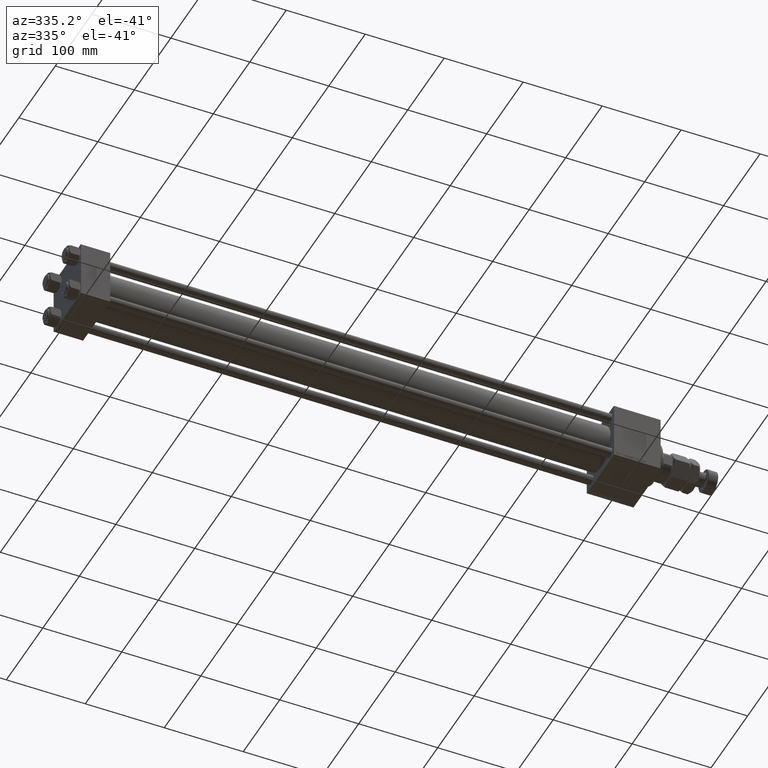
[diagram: clean part render]
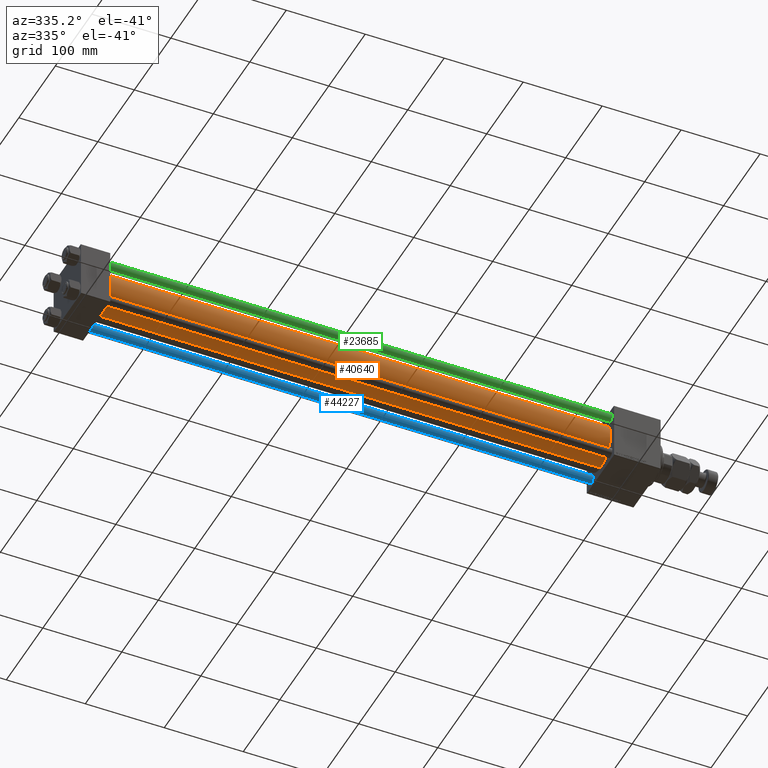
[diagram: same view with three faces highlighted in distinct colors, each labeled with its STEP entity id]
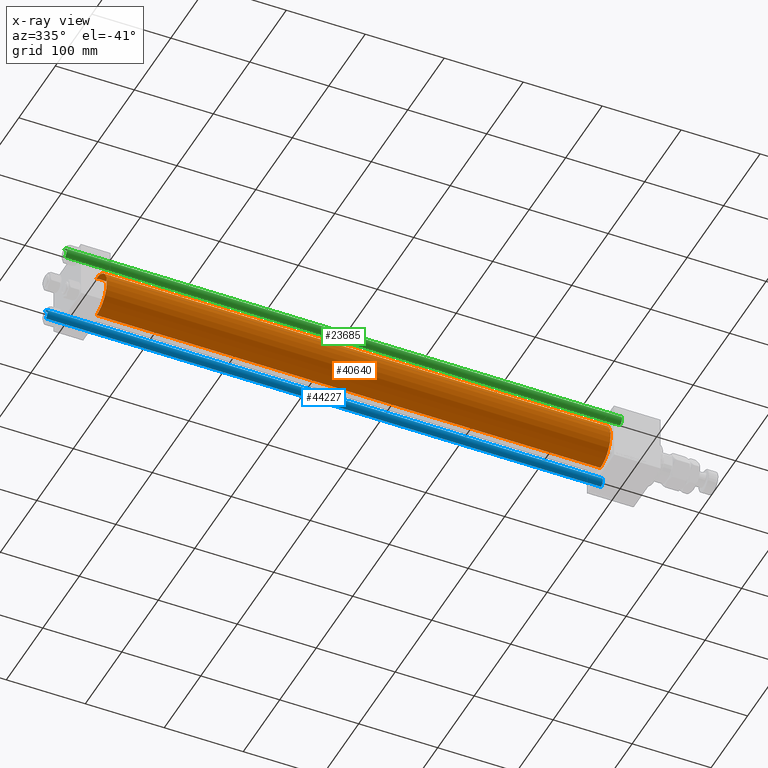
[diagram: x-ray of the same camera — body ghosted, the three highlighted faces saturated]
A machine part, auxiliary view with three faces highlighted in distinct colors.
The next image is the same camera in x-ray (body ghosted, the three faces saturated) — at least one of them is partly hidden behind the body in this view.
Their STEP definitions:

[orange] entity #40640 — the highlighted cylindrical surface (edge-blend (fillet) strip) has radius 28 mm, axis along (-1, -0, -0).
#881 = EDGE_CURVE ( 'NONE', #2930, #25992, #46389, .T. ) ;
#2930 = VERTEX_POINT ( 'NONE', #40798 ) ;
#4087 = CARTESIAN_POINT ( 'NONE',  ( 675.0000000000000000, -2.602085213965210642E-15, 0.000000000000000000 ) ) ;
#4605 = DIRECTION ( 'NONE',  ( 0.000000000000000000, 0.000000000000000000, -1.000000000000000000 ) ) ;
#11795 = AXIS2_PLACEMENT_3D ( 'NONE', #34148, #38110, #42054 ) ;
#12792 = CARTESIAN_POINT ( 'NONE',  ( 675.0000000000000000, 8.269258236473784371E-16, -28.00000000000000000 ) ) ;
#14673 = FACE_OUTER_BOUND ( 'NONE', #31154, .T. ) ;
#14922 = CARTESIAN_POINT ( 'NONE',  ( 675.0000000000000000, -2.602085213965210642E-15, 0.000000000000000000 ) ) ;
#15103 = VECTOR ( 'NONE', #17630, 1000.000000000000000 ) ;
#15224 = CARTESIAN_POINT ( 'NONE',  ( 675.0000000000000000, 8.269258236473784371E-16, -28.00000000000000000 ) ) ;
#16255 = EDGE_CURVE ( 'NONE', #24198, #17507, #20449, .T. ) ;
#16880 = CIRCLE ( 'NONE', #11795, 28.00000000000000000 ) ;
#17507 = VERTEX_POINT ( 'NONE', #19424 ) ;
#17630 = DIRECTION ( 'NONE',  ( -1.000000000000000000, -0.000000000000000000, -0.000000000000000000 ) ) ;
#18221 = ORIENTED_EDGE ( 'NONE', *, *, #881, .T. ) ;
#19424 = CARTESIAN_POINT ( 'NONE',  ( 37.00000000000003553, 8.269258236473784371E-16, -28.00000000000000000 ) ) ;
#20332 = CARTESIAN_POINT ( 'NONE',  ( 37.00000000000003553, -2.602085213965210642E-15, 28.00000000000000000 ) ) ;
#20449 = LINE ( 'NONE', #15224, #35118 ) ;
#21574 = CARTESIAN_POINT ( 'NONE',  ( 675.0000000000000000, -2.602085213965210642E-15, 28.00000000000000000 ) ) ;
#21923 = CIRCLE ( 'NONE', #26144, 28.00000000000000000 ) ;
#24029 = EDGE_CURVE ( 'NONE', #2930, #24198, #21923, .T. ) ;
#24198 = VERTEX_POINT ( 'NONE', #12792 ) ;
#24918 = EDGE_CURVE ( 'NONE', #25992, #17507, #16880, .T. ) ;
#25992 = VERTEX_POINT ( 'NONE', #20332 ) ;
#26144 = AXIS2_PLACEMENT_3D ( 'NONE', #4087, #36276, #4605 ) ;
#27042 = DIRECTION ( 'NONE',  ( 0.000000000000000000, 0.000000000000000000, 1.000000000000000000 ) ) ;
#27332 = ORIENTED_EDGE ( 'NONE', *, *, #24029, .F. ) ;
#31001 = DIRECTION ( 'NONE',  ( -1.000000000000000000, -0.000000000000000000, -0.000000000000000000 ) ) ;
#31154 = EDGE_LOOP ( 'NONE', ( #37407, #27332, #18221, #36185 ) ) ;
#34148 = CARTESIAN_POINT ( 'NONE',  ( 37.00000000000003553, -2.602085213965210642E-15, 0.000000000000000000 ) ) ;
#34961 = CYLINDRICAL_SURFACE ( 'NONE', #46816, 28.00000000000000000 ) ;
#35118 = VECTOR ( 'NONE', #47400, 1000.000000000000000 ) ;
#36185 = ORIENTED_EDGE ( 'NONE', *, *, #24918, .T. ) ;
#36276 = DIRECTION ( 'NONE',  ( 1.000000000000000000, 0.000000000000000000, 0.000000000000000000 ) ) ;
#37407 = ORIENTED_EDGE ( 'NONE', *, *, #16255, .F. ) ;
#38110 = DIRECTION ( 'NONE',  ( 1.000000000000000000, -0.000000000000000000, 0.000000000000000000 ) ) ;
#40640 = ADVANCED_FACE ( 'NONE', ( #14673 ), #34961, .T. ) ;
#40798 = CARTESIAN_POINT ( 'NONE',  ( 675.0000000000000000, -2.602085213965210642E-15, 28.00000000000000000 ) ) ;
#42054 = DIRECTION ( 'NONE',  ( 0.000000000000000000, 0.000000000000000000, 1.000000000000000000 ) ) ;
#46389 = LINE ( 'NONE', #21574, #15103 ) ;
#46816 = AXIS2_PLACEMENT_3D ( 'NONE', #14922, #31001, #27042 ) ;
#47400 = DIRECTION ( 'NONE',  ( -1.000000000000000000, -0.000000000000000000, -0.000000000000000000 ) ) ;

[blue] entity #44227 — the highlighted cylindrical surface (edge-blend (fillet) strip) has radius 6 mm, axis along (1, -0, 0).
#5690 = VERTEX_POINT ( 'NONE', #16688 ) ;
#6968 = DIRECTION ( 'NONE',  ( -0.000000000000000000, -0.000000000000000000, 1.000000000000000000 ) ) ;
#9003 = VECTOR ( 'NONE', #17805, 1000.000000000000000 ) ;
#10936 = LINE ( 'NONE', #43119, #9003 ) ;
#12044 = CARTESIAN_POINT ( 'NONE',  ( -6.000000000000000888, 0.000000000000000000, 703.5000000000000000 ) ) ;
#13727 = AXIS2_PLACEMENT_3D ( 'NONE', #46554, #6968, #18586 ) ;
#14998 = ORIENTED_EDGE ( 'NONE', *, *, #23281, .T. ) ;
#16497 = EDGE_CURVE ( 'NONE', #5690, #40656, #10936, .T. ) ;
#16556 = AXIS2_PLACEMENT_3D ( 'NONE', #38262, #46169, #17414 ) ;
#16688 = CARTESIAN_POINT ( 'NONE',  ( 6.000000000000000888, 7.347880794884120722E-16, 703.5000000000000000 ) ) ;
#17414 = DIRECTION ( 'NONE',  ( -1.000000000000000000, 0.000000000000000000, 0.000000000000000000 ) ) ;
#17805 = DIRECTION ( 'NONE',  ( -0.000000000000000000, -0.000000000000000000, -1.000000000000000000 ) ) ;
#17848 = LINE ( 'NONE', #45808, #42950 ) ;
#18586 = DIRECTION ( 'NONE',  ( 1.000000000000000000, 0.000000000000000000, 0.000000000000000000 ) ) ;
#20439 = CIRCLE ( 'NONE', #13727, 6.000000000000000888 ) ;
#21903 = EDGE_CURVE ( 'NONE', #5690, #40392, #51286, .T. ) ;
#23281 = EDGE_CURVE ( 'NONE', #40392, #34506, #17848, .T. ) ;
#24361 = CARTESIAN_POINT ( 'NONE',  ( 6.000000000000000888, 7.347880794884120722E-16, 0.4999999999998339106 ) ) ;
#27919 = EDGE_LOOP ( 'NONE', ( #45171, #47991, #14998, #51648 ) ) ;
#30259 = AXIS2_PLACEMENT_3D ( 'NONE', #50659, #38797, #30365 ) ;
#30365 = DIRECTION ( 'NONE',  ( 1.000000000000000000, 0.000000000000000000, 0.000000000000000000 ) ) ;
#33935 = DIRECTION ( 'NONE',  ( -0.000000000000000000, -0.000000000000000000, -1.000000000000000000 ) ) ;
#34501 = EDGE_CURVE ( 'NONE', #34506, #40656, #20439, .T. ) ;
#34506 = VERTEX_POINT ( 'NONE', #42584 ) ;
#38262 = CARTESIAN_POINT ( 'NONE',  ( 0.000000000000000000, 0.000000000000000000, 704.0000000000000000 ) ) ;
#38797 = DIRECTION ( 'NONE',  ( 0.000000000000000000, 0.000000000000000000, -1.000000000000000000 ) ) ;
#40392 = VERTEX_POINT ( 'NONE', #12044 ) ;
#40656 = VERTEX_POINT ( 'NONE', #24361 ) ;
#42584 = CARTESIAN_POINT ( 'NONE',  ( -6.000000000000000888, 0.000000000000000000, 0.4999999999998339106 ) ) ;
#42950 = VECTOR ( 'NONE', #33935, 1000.000000000000000 ) ;
#43119 = CARTESIAN_POINT ( 'NONE',  ( 6.000000000000000888, 7.347880794884120722E-16, 704.0000000000000000 ) ) ;
#44227 = ADVANCED_FACE ( 'NONE', ( #44662 ), #50119, .T. ) ;
#44662 = FACE_OUTER_BOUND ( 'NONE', #27919, .T. ) ;
#45171 = ORIENTED_EDGE ( 'NONE', *, *, #16497, .F. ) ;
#45808 = CARTESIAN_POINT ( 'NONE',  ( -6.000000000000000888, 0.000000000000000000, 704.0000000000000000 ) ) ;
#46169 = DIRECTION ( 'NONE',  ( -0.000000000000000000, -0.000000000000000000, -1.000000000000000000 ) ) ;
#46554 = CARTESIAN_POINT ( 'NONE',  ( 0.000000000000000000, 0.000000000000000000, 0.4999999999998339106 ) ) ;
#47991 = ORIENTED_EDGE ( 'NONE', *, *, #21903, .T. ) ;
#50119 = CYLINDRICAL_SURFACE ( 'NONE', #16556, 6.000000000000000888 ) ;
#50659 = CARTESIAN_POINT ( 'NONE',  ( 0.000000000000000000, 0.000000000000000000, 703.5000000000000000 ) ) ;
#51286 = CIRCLE ( 'NONE', #30259, 6.000000000000000888 ) ;
#51648 = ORIENTED_EDGE ( 'NONE', *, *, #34501, .T. ) ;

[green] entity #23685 — the highlighted cylindrical surface (edge-blend (fillet) strip) has radius 6 mm, axis along (1, 0, -0).
#4817 = ORIENTED_EDGE ( 'NONE', *, *, #29406, .T. ) ;
#4872 = AXIS2_PLACEMENT_3D ( 'NONE', #34959, #35212, #35985 ) ;
#4996 = CYLINDRICAL_SURFACE ( 'NONE', #12614, 6.000000000000000888 ) ;
#5509 = FACE_OUTER_BOUND ( 'NONE', #31825, .T. ) ;
#5690 = VERTEX_POINT ( 'NONE', #16688 ) ;
#5959 = AXIS2_PLACEMENT_3D ( 'NONE', #33064, #33576, #25397 ) ;
#7130 = ORIENTED_EDGE ( 'NONE', *, *, #23281, .F. ) ;
#9003 = VECTOR ( 'NONE', #17805, 1000.000000000000000 ) ;
#10936 = LINE ( 'NONE', #43119, #9003 ) ;
#12044 = CARTESIAN_POINT ( 'NONE',  ( -6.000000000000000888, 0.000000000000000000, 703.5000000000000000 ) ) ;
#12614 = AXIS2_PLACEMENT_3D ( 'NONE', #26361, #42178, #45347 ) ;
#16497 = EDGE_CURVE ( 'NONE', #5690, #40656, #10936, .T. ) ;
#16688 = CARTESIAN_POINT ( 'NONE',  ( 6.000000000000000888, 7.347880794884120722E-16, 703.5000000000000000 ) ) ;
#17805 = DIRECTION ( 'NONE',  ( -0.000000000000000000, -0.000000000000000000, -1.000000000000000000 ) ) ;
#17848 = LINE ( 'NONE', #45808, #42950 ) ;
#20660 = ORIENTED_EDGE ( 'NONE', *, *, #16497, .T. ) ;
#23281 = EDGE_CURVE ( 'NONE', #40392, #34506, #17848, .T. ) ;
#23685 = ADVANCED_FACE ( 'NONE', ( #5509 ), #4996, .T. ) ;
#24361 = CARTESIAN_POINT ( 'NONE',  ( 6.000000000000000888, 7.347880794884120722E-16, 0.4999999999998339106 ) ) ;
#25397 = DIRECTION ( 'NONE',  ( 1.000000000000000000, 0.000000000000000000, 0.000000000000000000 ) ) ;
#26361 = CARTESIAN_POINT ( 'NONE',  ( 0.000000000000000000, 0.000000000000000000, 704.0000000000000000 ) ) ;
#29406 = EDGE_CURVE ( 'NONE', #40392, #5690, #51439, .T. ) ;
#31825 = EDGE_LOOP ( 'NONE', ( #4817, #20660, #36679, #7130 ) ) ;
#33064 = CARTESIAN_POINT ( 'NONE',  ( 0.000000000000000000, 0.000000000000000000, 703.5000000000000000 ) ) ;
#33576 = DIRECTION ( 'NONE',  ( 0.000000000000000000, 0.000000000000000000, -1.000000000000000000 ) ) ;
#33935 = DIRECTION ( 'NONE',  ( -0.000000000000000000, -0.000000000000000000, -1.000000000000000000 ) ) ;
#34506 = VERTEX_POINT ( 'NONE', #42584 ) ;
#34959 = CARTESIAN_POINT ( 'NONE',  ( 0.000000000000000000, 0.000000000000000000, 0.4999999999998339106 ) ) ;
#35212 = DIRECTION ( 'NONE',  ( -0.000000000000000000, -0.000000000000000000, 1.000000000000000000 ) ) ;
#35985 = DIRECTION ( 'NONE',  ( 1.000000000000000000, 0.000000000000000000, 0.000000000000000000 ) ) ;
#36679 = ORIENTED_EDGE ( 'NONE', *, *, #48814, .T. ) ;
#40392 = VERTEX_POINT ( 'NONE', #12044 ) ;
#40656 = VERTEX_POINT ( 'NONE', #24361 ) ;
#42178 = DIRECTION ( 'NONE',  ( -0.000000000000000000, -0.000000000000000000, -1.000000000000000000 ) ) ;
#42584 = CARTESIAN_POINT ( 'NONE',  ( -6.000000000000000888, 0.000000000000000000, 0.4999999999998339106 ) ) ;
#42950 = VECTOR ( 'NONE', #33935, 1000.000000000000000 ) ;
#43119 = CARTESIAN_POINT ( 'NONE',  ( 6.000000000000000888, 7.347880794884120722E-16, 704.0000000000000000 ) ) ;
#45347 = DIRECTION ( 'NONE',  ( -1.000000000000000000, 0.000000000000000000, 0.000000000000000000 ) ) ;
#45808 = CARTESIAN_POINT ( 'NONE',  ( -6.000000000000000888, 0.000000000000000000, 704.0000000000000000 ) ) ;
#48814 = EDGE_CURVE ( 'NONE', #40656, #34506, #52040, .T. ) ;
#51439 = CIRCLE ( 'NONE', #5959, 6.000000000000000888 ) ;
#52040 = CIRCLE ( 'NONE', #4872, 6.000000000000000888 ) ;